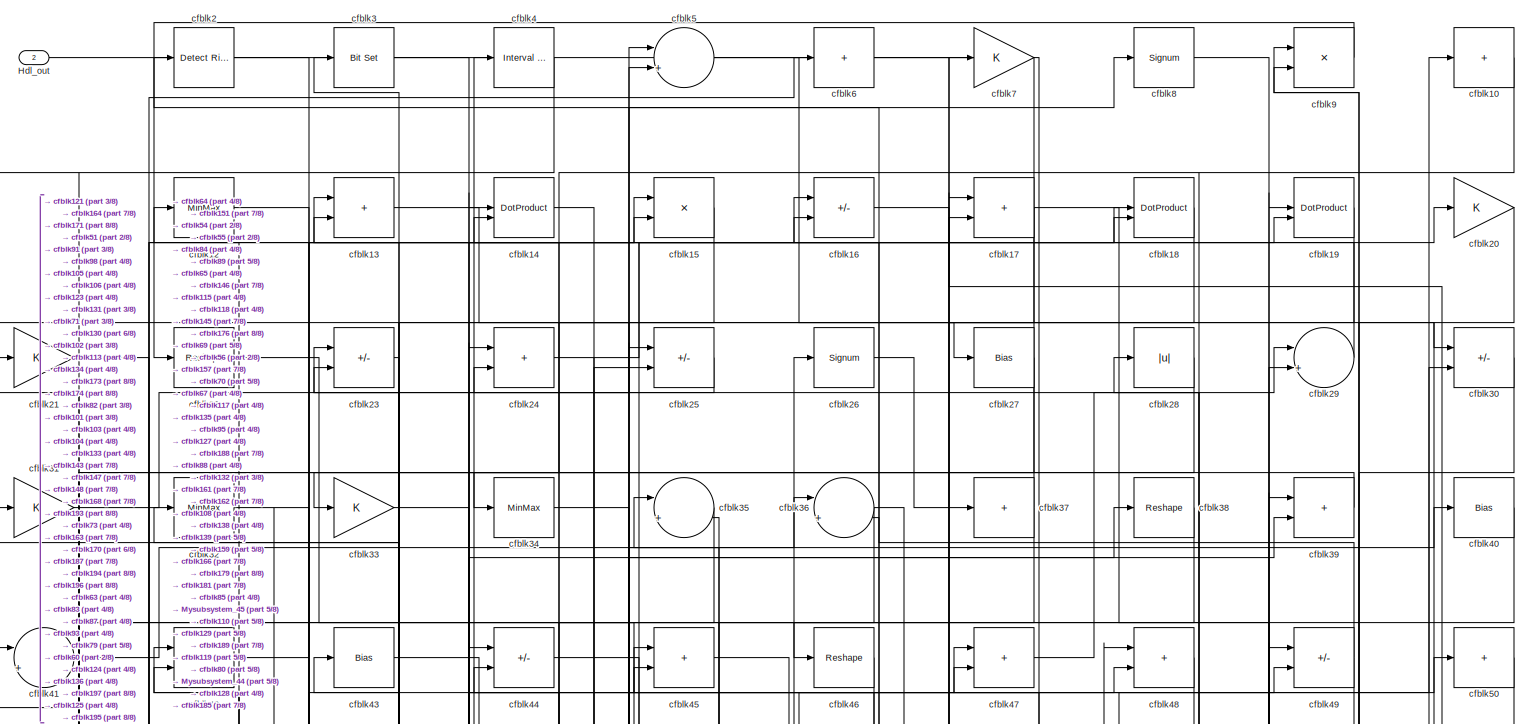
[diagram: root canvas - part 1/8, full width, top band]
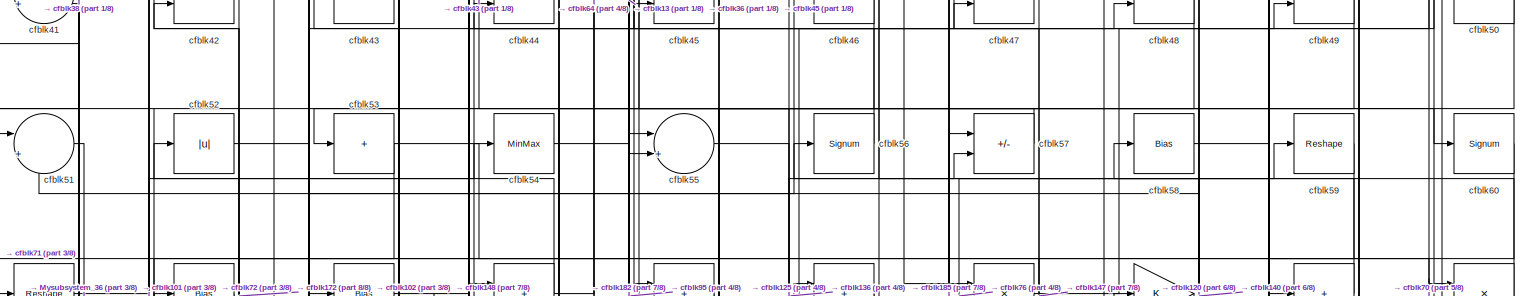
[diagram: root canvas - part 2/8, full width, top band]
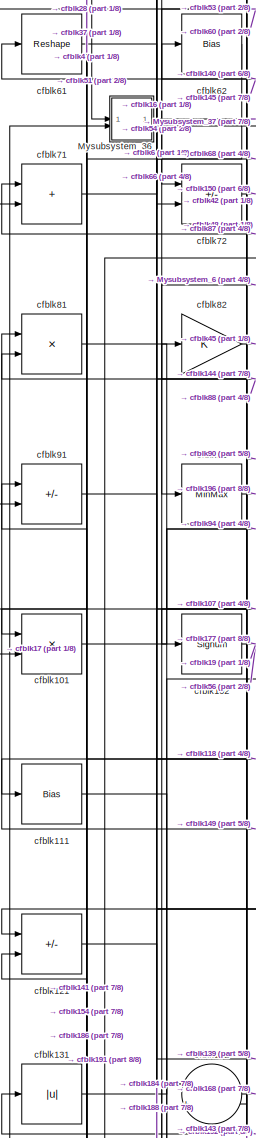
[diagram: root canvas - part 3/8, middle left region]
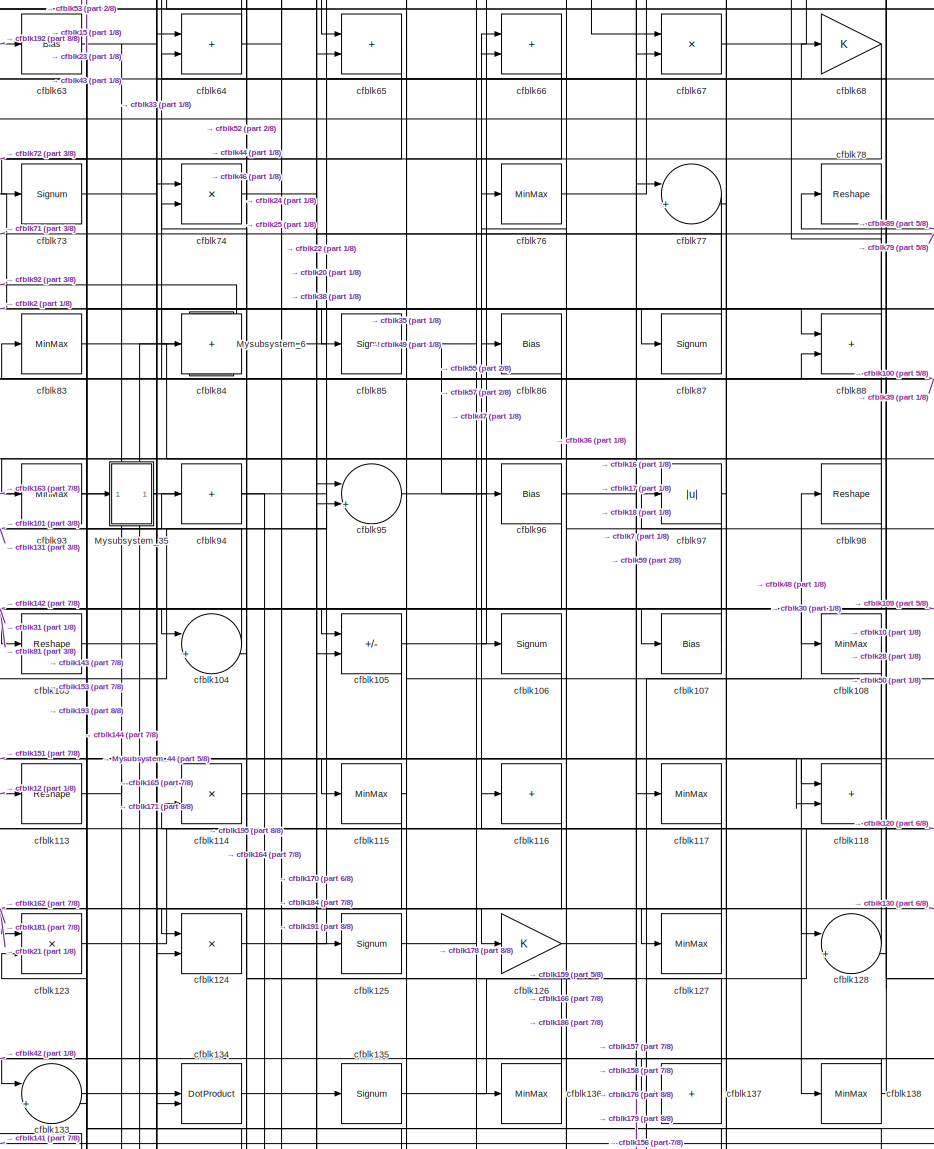
[diagram: root canvas - part 4/8, central region]
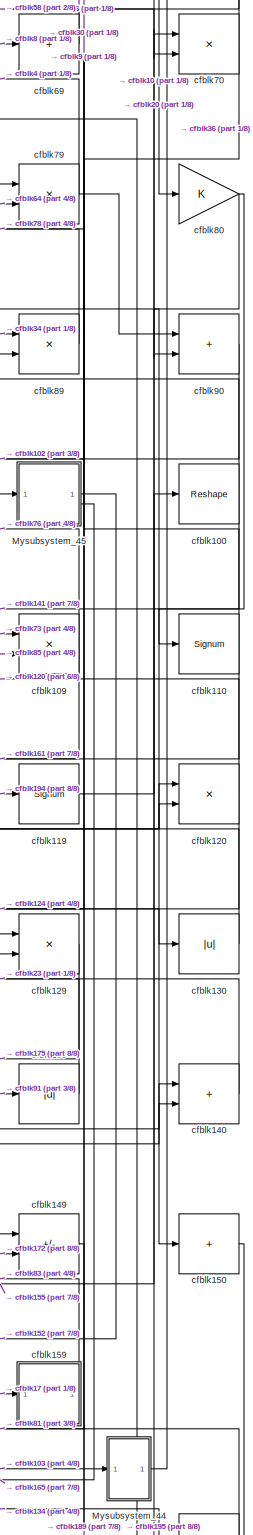
[diagram: root canvas - part 5/8, middle right region]
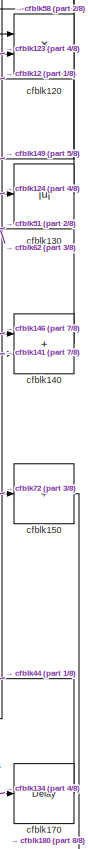
[diagram: root canvas - part 6/8, bottom right region]
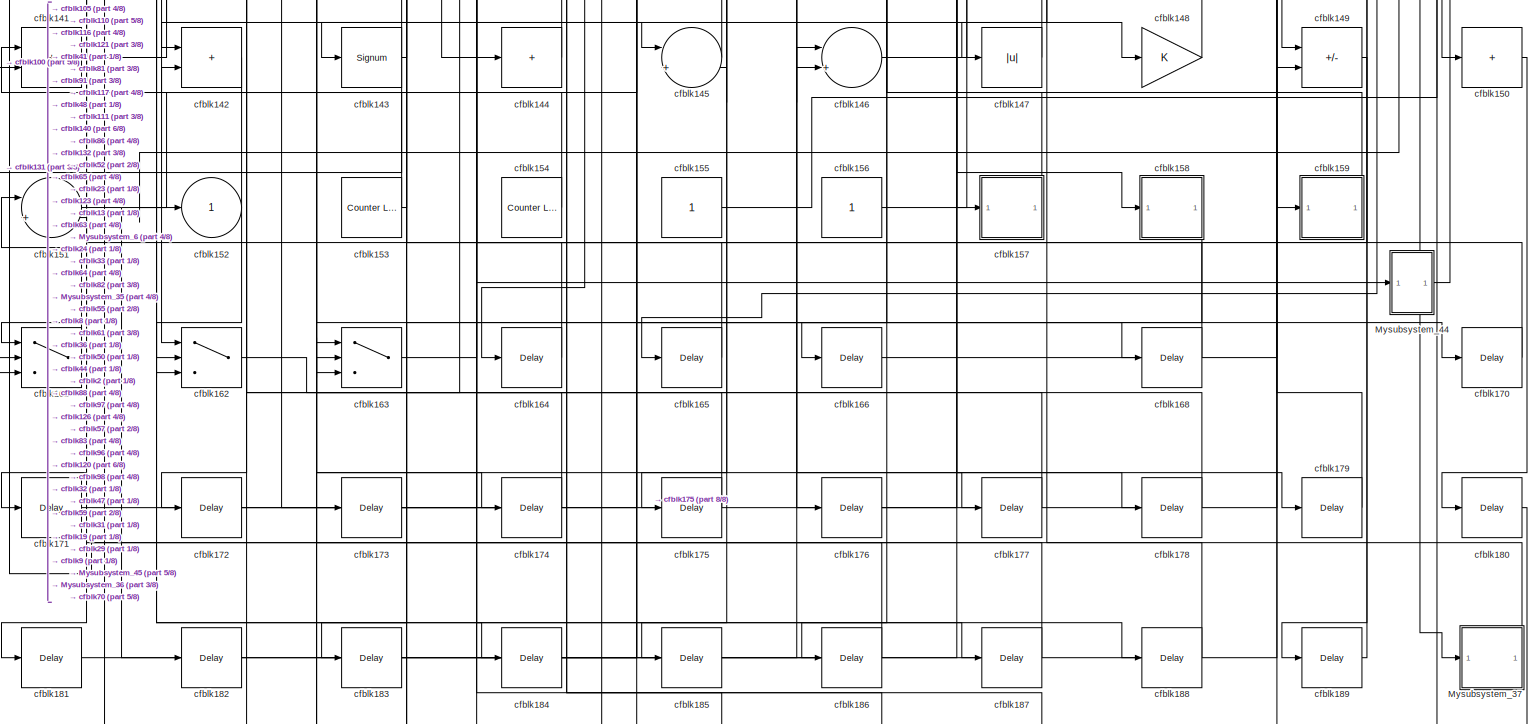
[diagram: root canvas - part 7/8, full width, bottom band]
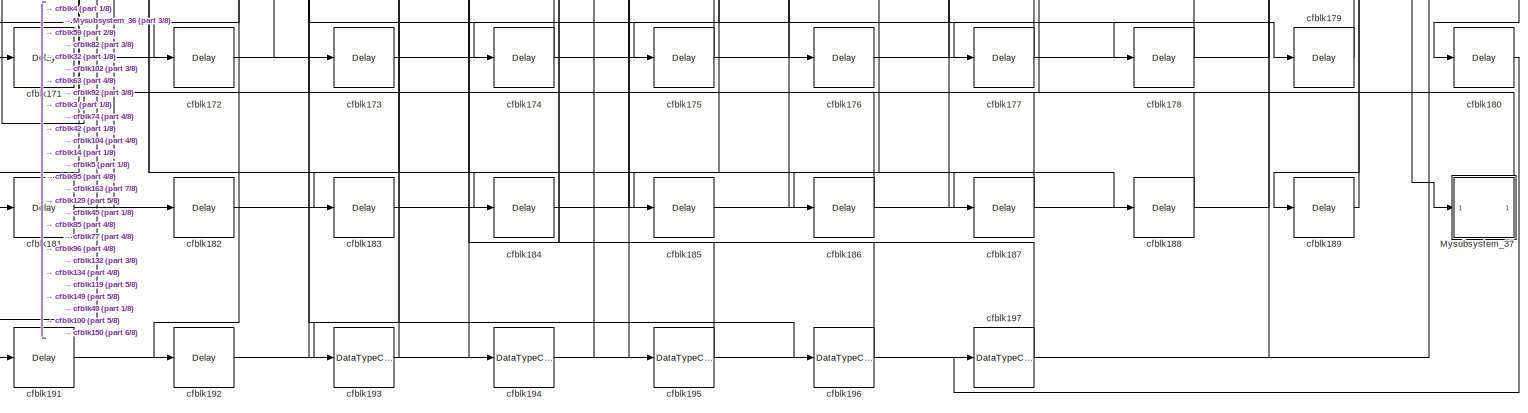
[diagram: root canvas - part 8/8, full width, bottom band]
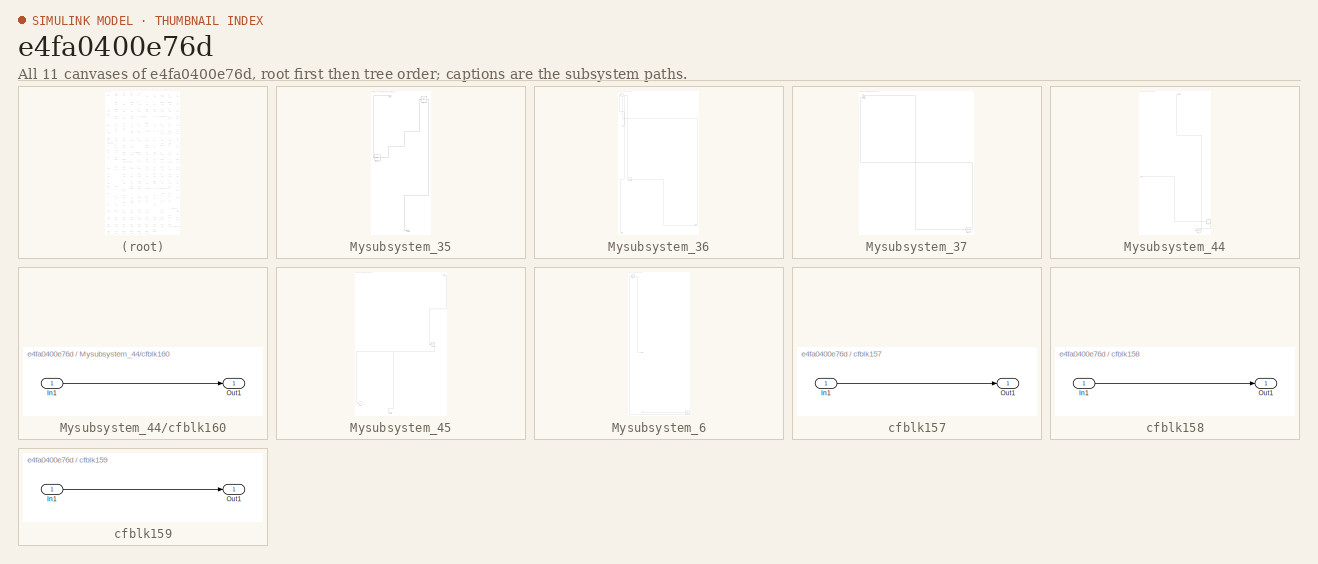
[diagram: thumbnail index - all 11 canvases of the model, root first then tree order]
MODEL slx_e4fa0400e76d
KIND model
CONFIG AbsTol = auto
CONFIG EnableMultiTasking = off
CONFIG FixedStep = auto
CONFIG MaxStep = auto
CONFIG MinStep = auto
CONFIG RelTol = 1e-3
CONFIG SampleTimeConstraint = Unconstrained
CONFIG SolverName = VariableStepAuto
CONFIG StartTime = 0.0
CONFIG StopTime = 10.0
BLOCK [Outport] Hdl_out
  OutDataTypeStr = uint8
  Port = 2
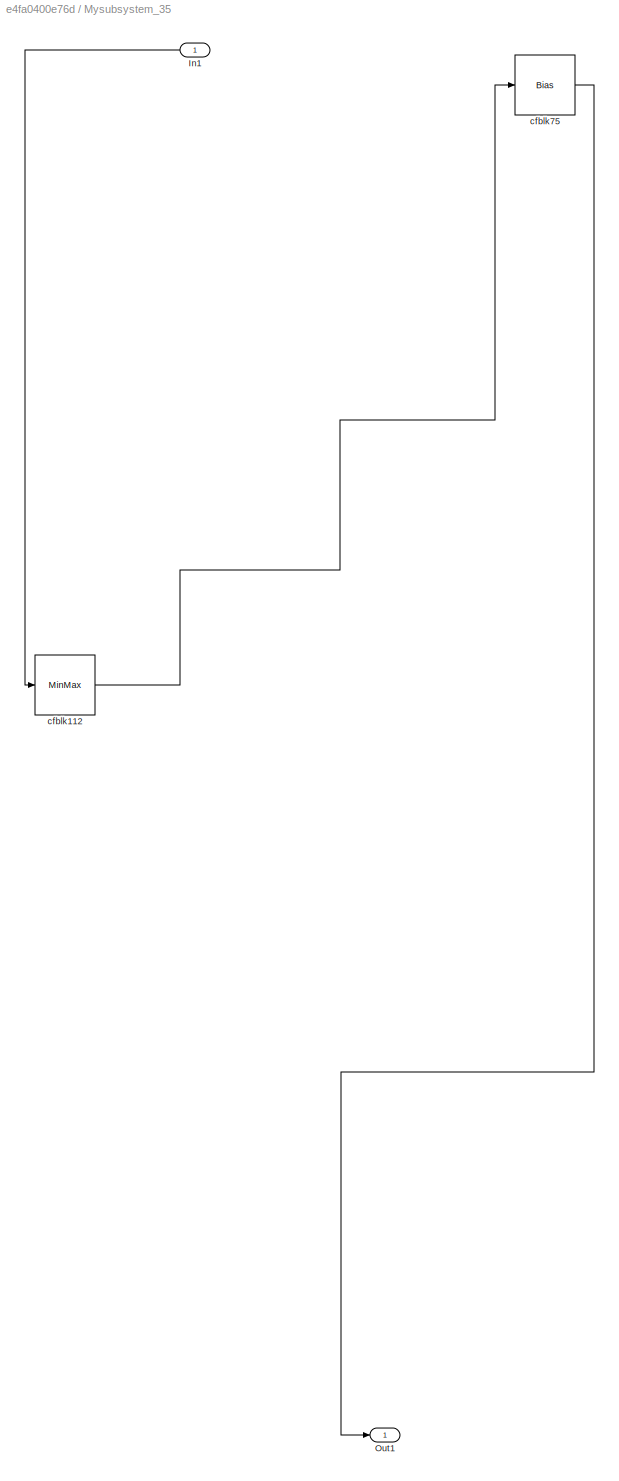
BLOCK [SubSystem] Mysubsystem_35
  RTWFcnName = Mysubsystem_35
  RTWFcnNameOpts = User specified
  RTWFileNameOpts = Use function name
  RTWSystemCode = Reusable function
  TreatAsAtomicUnit = on
BLOCK [Inport] Mysubsystem_35/In1
BLOCK [Outport] Mysubsystem_35/Out1
BLOCK [MinMax] Mysubsystem_35/cfblk112
BLOCK [Bias] Mysubsystem_35/cfblk75
  Bias = 0.0
  SaturateOnIntegerOverflow = off
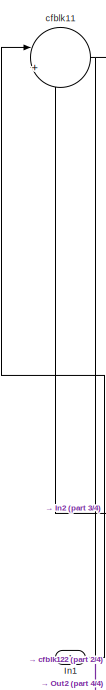
[diagram: Mysubsystem_36 - part 1/4, top left region]
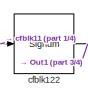
[diagram: Mysubsystem_36 - part 2/4, middle left region]
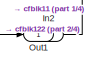
[diagram: Mysubsystem_36 - part 3/4, bottom right region]
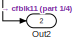
[diagram: Mysubsystem_36 - part 4/4, bottom left region]
BLOCK [SubSystem] Mysubsystem_36
  RTWFcnName = Mysubsystem_36
  RTWFcnNameOpts = User specified
  RTWFileNameOpts = Use function name
  RTWSystemCode = Reusable function
  TreatAsAtomicUnit = on
BLOCK [Inport] Mysubsystem_36/In1
BLOCK [Inport] Mysubsystem_36/In2
  Port = 2
BLOCK [Outport] Mysubsystem_36/Out1
BLOCK [Outport] Mysubsystem_36/Out2
  Port = 2
BLOCK [Sum] Mysubsystem_36/cfblk11
  Inputs = |++
BLOCK [Signum] Mysubsystem_36/cfblk122
BLOCK [SubSystem] Mysubsystem_37
  RTWFcnName = Mysubsystem_37
  RTWFcnNameOpts = User specified
  RTWFileNameOpts = Use function name
  RTWSystemCode = Reusable function
  TreatAsAtomicUnit = on
BLOCK [Inport] Mysubsystem_37/In1
BLOCK [Outport] Mysubsystem_37/Out1
BLOCK [Delay] Mysubsystem_37/cfblk190
  InputPortMap = u0
  SampleTime = 1
BLOCK [SubSystem] Mysubsystem_44
  RTWFcnName = Mysubsystem_44
  RTWFcnNameOpts = User specified
  RTWFileNameOpts = Use function name
  RTWSystemCode = Reusable function
  TreatAsAtomicUnit = on
BLOCK [Inport] Mysubsystem_44/In1
BLOCK [Outport] Mysubsystem_44/Out1
BLOCK [SubSystem] Mysubsystem_44/cfblk160
  LibrarySourceBlock = hdlsllib/Ports &\nSubsystems/Subsystem
BLOCK [Inport] Mysubsystem_44/cfblk160/In1
BLOCK [Outport] Mysubsystem_44/cfblk160/Out1
BLOCK [Delay] Mysubsystem_44/cfblk169
  InputPortMap = u0
  SampleTime = 1
BLOCK [SubSystem] Mysubsystem_45
  RTWFcnName = Mysubsystem_45
  RTWFcnNameOpts = User specified
  RTWFileNameOpts = Use function name
  RTWSystemCode = Reusable function
  TreatAsAtomicUnit = on
BLOCK [Inport] Mysubsystem_45/In1
BLOCK [Outport] Mysubsystem_45/Out2
  Port = 2
BLOCK [Outport] Mysubsystem_45/cfblk152
  VectorParamsAs1DForOutWhenUnconnected = off
BLOCK [Reshape] Mysubsystem_45/cfblk99
BLOCK [SubSystem] Mysubsystem_6
  RTWFcnName = Mysubsystem_6
  RTWFcnNameOpts = User specified
  RTWFileNameOpts = Use function name
  RTWSystemCode = Reusable function
  TreatAsAtomicUnit = on
BLOCK [Inport] Mysubsystem_6/In1
BLOCK [Reference] Mysubsystem_6/cfblk1  REF=hdlsllib/Logic and Bit
Operations/Compare
To Constant
  SourceBlock = hdlsllib/Logic and Bit\nOperations/Compare\nTo Constant
  SourceType = Compare To Constant
BLOCK [Delay] Mysubsystem_6/cfblk167
  InputPortMap = u0
  SampleTime = 1
BLOCK [Outport] Mysubsystem_6/y
BLOCK [Sum] cfblk10
  IconShape = rectangular
  Inputs = +
  OutDataTypeStr = uint8
BLOCK [Reshape] cfblk100
BLOCK [Product] cfblk101
  Inputs = */
  OutDataTypeStr = uint8
  RndMeth = Zero
  SaturateOnIntegerOverflow = on
BLOCK [Signum] cfblk102
BLOCK [Reshape] cfblk103
BLOCK [Sum] cfblk104
  Inputs = |++
  OutDataTypeStr = uint8
BLOCK [Sum] cfblk105
  IconShape = rectangular
  Inputs = +-
  OutDataTypeStr = uint8
BLOCK [Signum] cfblk106
BLOCK [Bias] cfblk107
  Bias = 0.0
  SaturateOnIntegerOverflow = off
BLOCK [MinMax] cfblk108
  OutDataTypeStr = uint8
BLOCK [Product] cfblk109
  Inputs = */
  OutDataTypeStr = uint8
  RndMeth = Zero
  SaturateOnIntegerOverflow = on
BLOCK [Signum] cfblk110
BLOCK [Bias] cfblk111
  Bias = 0.0
  SaturateOnIntegerOverflow = off
BLOCK [Reshape] cfblk113
BLOCK [Product] cfblk114
  Inputs = */
  OutDataTypeStr = uint8
  RndMeth = Zero
  SaturateOnIntegerOverflow = on
BLOCK [MinMax] cfblk115
  OutDataTypeStr = uint8
BLOCK [Sum] cfblk116
  IconShape = rectangular
  Inputs = +
  OutDataTypeStr = uint8
BLOCK [MinMax] cfblk117
  OutDataTypeStr = uint8
BLOCK [Sum] cfblk118
  IconShape = rectangular
  OutDataTypeStr = uint8
BLOCK [Signum] cfblk119
BLOCK [MinMax] cfblk12
  OutDataTypeStr = uint8
BLOCK [Product] cfblk120
  Inputs = */
  OutDataTypeStr = uint8
  RndMeth = Zero
  SaturateOnIntegerOverflow = on
BLOCK [Sum] cfblk121
  IconShape = rectangular
  Inputs = +-
  OutDataTypeStr = uint8
BLOCK [Product] cfblk123
  Inputs = */
  OutDataTypeStr = uint8
  RndMeth = Zero
  SaturateOnIntegerOverflow = on
BLOCK [Product] cfblk124
  Inputs = */
  OutDataTypeStr = uint8
  RndMeth = Zero
  SaturateOnIntegerOverflow = on
BLOCK [Signum] cfblk125
BLOCK [Gain] cfblk126
  OutDataTypeStr = uint8
BLOCK [MinMax] cfblk127
  OutDataTypeStr = uint8
BLOCK [Sum] cfblk128
  Inputs = |++
  OutDataTypeStr = uint8
BLOCK [Product] cfblk129
  Inputs = */
  OutDataTypeStr = uint8
  RndMeth = Zero
  SaturateOnIntegerOverflow = on
BLOCK [Sum] cfblk13
  IconShape = rectangular
  OutDataTypeStr = uint8
BLOCK [Abs] cfblk130
  OutDataTypeStr = uint8
  SaturateOnIntegerOverflow = off
BLOCK [Abs] cfblk131
  OutDataTypeStr = uint8
  SaturateOnIntegerOverflow = off
BLOCK [Sum] cfblk132
  Inputs = |++
  OutDataTypeStr = uint8
BLOCK [Sum] cfblk133
  Inputs = |++
  OutDataTypeStr = uint8
BLOCK [DotProduct] cfblk134
  OutDataTypeStr = uint8
BLOCK [Signum] cfblk135
BLOCK [MinMax] cfblk136
  OutDataTypeStr = uint8
BLOCK [Sum] cfblk137
  IconShape = rectangular
  Inputs = +
  OutDataTypeStr = uint8
BLOCK [MinMax] cfblk138
  OutDataTypeStr = uint8
BLOCK [Abs] cfblk139
  OutDataTypeStr = uint8
  SaturateOnIntegerOverflow = off
BLOCK [DotProduct] cfblk14
  OutDataTypeStr = uint8
BLOCK [Sum] cfblk140
  IconShape = rectangular
  OutDataTypeStr = uint8
BLOCK [Sum] cfblk141
  IconShape = rectangular
  OutDataTypeStr = uint8
BLOCK [Sum] cfblk142
  IconShape = rectangular
  OutDataTypeStr = uint8
BLOCK [Signum] cfblk143
BLOCK [Sum] cfblk144
  IconShape = rectangular
  Inputs = +
  OutDataTypeStr = uint8
BLOCK [Sum] cfblk145
  Inputs = |++
  OutDataTypeStr = uint8
BLOCK [Sum] cfblk146
  Inputs = |++
  OutDataTypeStr = uint8
BLOCK [Abs] cfblk147
  OutDataTypeStr = uint8
  SaturateOnIntegerOverflow = off
BLOCK [Gain] cfblk148
  OutDataTypeStr = uint8
BLOCK [Sum] cfblk149
  IconShape = rectangular
  Inputs = +-
  OutDataTypeStr = uint8
BLOCK [Product] cfblk15
  Inputs = */
  OutDataTypeStr = uint8
  RndMeth = Zero
  SaturateOnIntegerOverflow = on
BLOCK [Sum] cfblk150
  IconShape = rectangular
  Inputs = +
  OutDataTypeStr = uint8
BLOCK [Sum] cfblk151
  Inputs = |++
  OutDataTypeStr = uint8
BLOCK [Outport] cfblk152
  OutDataTypeStr = uint8
  VectorParamsAs1DForOutWhenUnconnected = off
BLOCK [Reference] cfblk153  REF=hdlsllib/Sources/Counter
Limited
  SourceBlock = hdlsllib/Sources/Counter\nLimited
  SourceType = Counter Limited
BLOCK [Reference] cfblk154  REF=hdlsllib/Sources/Counter
Limited
  SourceBlock = hdlsllib/Sources/Counter\nLimited
  SourceType = Counter Limited
BLOCK [Constant] cfblk155
  OutDataTypeStr = uint8
  SampleTime = -1
BLOCK [Constant] cfblk156
  OutDataTypeStr = uint8
  SampleTime = -1
BLOCK [SubSystem] cfblk157
  LibrarySourceBlock = hdlsllib/Ports &\nSubsystems/Subsystem
BLOCK [Inport] cfblk157/In1
BLOCK [Outport] cfblk157/Out1
BLOCK [SubSystem] cfblk158
  LibrarySourceBlock = hdlsllib/Ports &\nSubsystems/Subsystem
BLOCK [Inport] cfblk158/In1
BLOCK [Outport] cfblk158/Out1
BLOCK [SubSystem] cfblk159
  LibrarySourceBlock = hdlsllib/Ports &\nSubsystems/Subsystem
BLOCK [Inport] cfblk159/In1
BLOCK [Outport] cfblk159/Out1
BLOCK [Sum] cfblk16
  IconShape = rectangular
  Inputs = +-
  OutDataTypeStr = uint8
BLOCK [Switch] cfblk161
  InputSameDT = off
  OutDataTypeStr = uint8
  SaturateOnIntegerOverflow = off
BLOCK [Switch] cfblk162
  InputSameDT = off
  OutDataTypeStr = uint8
  SaturateOnIntegerOverflow = off
BLOCK [Switch] cfblk163
  InputSameDT = off
  OutDataTypeStr = uint8
  SaturateOnIntegerOverflow = off
BLOCK [Delay] cfblk164
  InputPortMap = u0
  SampleTime = 1
BLOCK [Delay] cfblk165
  InputPortMap = u0
  SampleTime = 1
BLOCK [Delay] cfblk166
  InputPortMap = u0
  SampleTime = 1
BLOCK [Delay] cfblk168
  InputPortMap = u0
  SampleTime = 1
BLOCK [Sum] cfblk17
  IconShape = rectangular
  OutDataTypeStr = uint8
BLOCK [Delay] cfblk170
  InputPortMap = u0
  SampleTime = 1
BLOCK [Delay] cfblk171
  InputPortMap = u0
  SampleTime = 1
BLOCK [Delay] cfblk172
  InputPortMap = u0
  SampleTime = 1
BLOCK [Delay] cfblk173
  InputPortMap = u0
  SampleTime = 1
BLOCK [Delay] cfblk174
  InputPortMap = u0
  SampleTime = 1
BLOCK [Delay] cfblk175
  InputPortMap = u0
  SampleTime = 1
BLOCK [Delay] cfblk176
  InputPortMap = u0
  SampleTime = 1
BLOCK [Delay] cfblk177
  InputPortMap = u0
  SampleTime = 1
BLOCK [Delay] cfblk178
  InputPortMap = u0
  SampleTime = 1
BLOCK [Delay] cfblk179
  InputPortMap = u0
  SampleTime = 1
BLOCK [DotProduct] cfblk18
  OutDataTypeStr = uint8
BLOCK [Delay] cfblk180
  InputPortMap = u0
  SampleTime = 1
BLOCK [Delay] cfblk181
  InputPortMap = u0
  SampleTime = 1
BLOCK [Delay] cfblk182
  InputPortMap = u0
  SampleTime = 1
BLOCK [Delay] cfblk183
  InputPortMap = u0
  SampleTime = 1
BLOCK [Delay] cfblk184
  InputPortMap = u0
  SampleTime = 1
BLOCK [Delay] cfblk185
  InputPortMap = u0
  SampleTime = 1
BLOCK [Delay] cfblk186
  InputPortMap = u0
  SampleTime = 1
BLOCK [Delay] cfblk187
  InputPortMap = u0
  SampleTime = 1
BLOCK [Delay] cfblk188
  InputPortMap = u0
  SampleTime = 1
BLOCK [Delay] cfblk189
  InputPortMap = u0
  SampleTime = 1
BLOCK [DotProduct] cfblk19
  OutDataTypeStr = uint8
BLOCK [Delay] cfblk191
  InputPortMap = u0
  SampleTime = 1
BLOCK [Delay] cfblk192
  InputPortMap = u0
  SampleTime = 1
BLOCK [DataTypeConversion] cfblk193
  OutDataTypeStr = uint8
  RndMeth = Floor
  SaturateOnIntegerOverflow = off
BLOCK [DataTypeConversion] cfblk194
  OutDataTypeStr = uint8
  RndMeth = Floor
  SaturateOnIntegerOverflow = off
BLOCK [DataTypeConversion] cfblk195
  OutDataTypeStr = uint8
  RndMeth = Floor
  SaturateOnIntegerOverflow = off
BLOCK [DataTypeConversion] cfblk196
  OutDataTypeStr = uint8
  RndMeth = Floor
  SaturateOnIntegerOverflow = off
BLOCK [DataTypeConversion] cfblk197
  OutDataTypeStr = uint8
  RndMeth = Floor
  SaturateOnIntegerOverflow = off
BLOCK [Reference] cfblk2  REF=hdlsllib/Logic and Bit
Operations/Detect Rise
Nonnegative
  SourceBlock = hdlsllib/Logic and Bit\nOperations/Detect Rise\nNonnegative
  SourceType = Detect Rise Nonnegative
BLOCK [Gain] cfblk20
  OutDataTypeStr = uint8
BLOCK [Gain] cfblk21
  OutDataTypeStr = uint8
BLOCK [Reshape] cfblk22
BLOCK [Sum] cfblk23
  IconShape = rectangular
  Inputs = +-
  OutDataTypeStr = uint8
BLOCK [Sum] cfblk24
  IconShape = rectangular
  OutDataTypeStr = uint8
BLOCK [Sum] cfblk25
  IconShape = rectangular
  Inputs = +-
  OutDataTypeStr = uint8
BLOCK [Signum] cfblk26
BLOCK [Bias] cfblk27
  Bias = 0.0
  SaturateOnIntegerOverflow = off
BLOCK [Abs] cfblk28
  OutDataTypeStr = uint8
  SaturateOnIntegerOverflow = off
BLOCK [Sum] cfblk29
  Inputs = |++
  OutDataTypeStr = uint8
BLOCK [Reference] cfblk3  REF=simulink/Logic and Bit
Operations/Bit Set
  LibrarySourceBlock = hdlsllib/Logic and Bit\nOperations/Bit Set
  SourceBlock = simulink/Logic and Bit\nOperations/Bit Set
  SourceType = Bit Set
BLOCK [Sum] cfblk30
  IconShape = rectangular
  Inputs = +-
  OutDataTypeStr = uint8
BLOCK [Gain] cfblk31
  OutDataTypeStr = uint8
BLOCK [MinMax] cfblk32
  OutDataTypeStr = uint8
BLOCK [Gain] cfblk33
  OutDataTypeStr = uint8
BLOCK [MinMax] cfblk34
  OutDataTypeStr = uint8
BLOCK [Sum] cfblk35
  Inputs = |++
  OutDataTypeStr = uint8
BLOCK [Sum] cfblk36
  Inputs = |++
  OutDataTypeStr = uint8
BLOCK [Sum] cfblk37
  IconShape = rectangular
  Inputs = +
  OutDataTypeStr = uint8
BLOCK [Reshape] cfblk38
BLOCK [Sum] cfblk39
  IconShape = rectangular
  OutDataTypeStr = uint8
BLOCK [Reference] cfblk4  REF=hdlsllib/Logic and Bit
Operations/Interval Test
  SourceBlock = hdlsllib/Logic and Bit\nOperations/Interval Test
  SourceType = Interval Test
BLOCK [Bias] cfblk40
  Bias = 0.0
  SaturateOnIntegerOverflow = off
BLOCK [Sum] cfblk41
  Inputs = |++
  OutDataTypeStr = uint8
BLOCK [Product] cfblk42
  Inputs = */
  OutDataTypeStr = uint8
  RndMeth = Zero
  SaturateOnIntegerOverflow = on
BLOCK [Bias] cfblk43
  Bias = 0.0
  SaturateOnIntegerOverflow = off
BLOCK [Sum] cfblk44
  IconShape = rectangular
  Inputs = +-
  OutDataTypeStr = uint8
BLOCK [Sum] cfblk45
  IconShape = rectangular
  OutDataTypeStr = uint8
BLOCK [Reshape] cfblk46
BLOCK [Sum] cfblk47
  IconShape = rectangular
  OutDataTypeStr = uint8
BLOCK [Sum] cfblk48
  IconShape = rectangular
  OutDataTypeStr = uint8
BLOCK [Sum] cfblk49
  IconShape = rectangular
  Inputs = +-
  OutDataTypeStr = uint8
BLOCK [Sum] cfblk5
  Inputs = |++
  OutDataTypeStr = uint8
BLOCK [Sum] cfblk50
  IconShape = rectangular
  Inputs = +
  OutDataTypeStr = uint8
BLOCK [Sum] cfblk51
  Inputs = |++
  OutDataTypeStr = uint8
BLOCK [Abs] cfblk52
  OutDataTypeStr = uint8
  SaturateOnIntegerOverflow = off
BLOCK [Sum] cfblk53
  IconShape = rectangular
  Inputs = +
  OutDataTypeStr = uint8
BLOCK [MinMax] cfblk54
  OutDataTypeStr = uint8
BLOCK [Sum] cfblk55
  Inputs = |++
  OutDataTypeStr = uint8
BLOCK [Signum] cfblk56
BLOCK [Sum] cfblk57
  IconShape = rectangular
  Inputs = +-
  OutDataTypeStr = uint8
BLOCK [Bias] cfblk58
  Bias = 0.0
  SaturateOnIntegerOverflow = off
BLOCK [Reshape] cfblk59
BLOCK [Sum] cfblk6
  IconShape = rectangular
  Inputs = +
  OutDataTypeStr = uint8
BLOCK [Signum] cfblk60
BLOCK [Reshape] cfblk61
BLOCK [Bias] cfblk62
  Bias = 0.0
  SaturateOnIntegerOverflow = off
BLOCK [Bias] cfblk63
  Bias = 0.0
  SaturateOnIntegerOverflow = off
BLOCK [Sum] cfblk64
  IconShape = rectangular
  OutDataTypeStr = uint8
BLOCK [Sum] cfblk65
  IconShape = rectangular
  OutDataTypeStr = uint8
BLOCK [Sum] cfblk66
  IconShape = rectangular
  OutDataTypeStr = uint8
BLOCK [Product] cfblk67
  Inputs = */
  OutDataTypeStr = uint8
  RndMeth = Zero
  SaturateOnIntegerOverflow = on
BLOCK [Gain] cfblk68
  OutDataTypeStr = uint8
BLOCK [Sum] cfblk69
  IconShape = rectangular
  Inputs = +
  OutDataTypeStr = uint8
BLOCK [Gain] cfblk7
  OutDataTypeStr = uint8
BLOCK [Product] cfblk70
  Inputs = */
  OutDataTypeStr = uint8
  RndMeth = Zero
  SaturateOnIntegerOverflow = on
BLOCK [Sum] cfblk71
  IconShape = rectangular
  OutDataTypeStr = uint8
BLOCK [Sum] cfblk72
  IconShape = rectangular
  Inputs = +-
  OutDataTypeStr = uint8
BLOCK [Signum] cfblk73
BLOCK [Product] cfblk74
  Inputs = */
  OutDataTypeStr = uint8
  RndMeth = Zero
  SaturateOnIntegerOverflow = on
BLOCK [MinMax] cfblk76
  OutDataTypeStr = uint8
BLOCK [Sum] cfblk77
  Inputs = |++
  OutDataTypeStr = uint8
BLOCK [Reshape] cfblk78
BLOCK [Product] cfblk79
  Inputs = */
  OutDataTypeStr = uint8
  RndMeth = Zero
  SaturateOnIntegerOverflow = on
BLOCK [Signum] cfblk8
BLOCK [Gain] cfblk80
  OutDataTypeStr = uint8
BLOCK [Product] cfblk81
  Inputs = */
  OutDataTypeStr = uint8
  RndMeth = Zero
  SaturateOnIntegerOverflow = on
BLOCK [Gain] cfblk82
  OutDataTypeStr = uint8
BLOCK [MinMax] cfblk83
  OutDataTypeStr = uint8
BLOCK [Sum] cfblk84
  IconShape = rectangular
  Inputs = +
  OutDataTypeStr = uint8
BLOCK [Signum] cfblk85
BLOCK [Bias] cfblk86
  Bias = 0.0
  SaturateOnIntegerOverflow = off
BLOCK [Signum] cfblk87
BLOCK [Sum] cfblk88
  IconShape = rectangular
  OutDataTypeStr = uint8
BLOCK [Product] cfblk89
  Inputs = */
  OutDataTypeStr = uint8
  RndMeth = Zero
  SaturateOnIntegerOverflow = on
BLOCK [Product] cfblk9
  Inputs = */
  OutDataTypeStr = uint8
  RndMeth = Zero
  SaturateOnIntegerOverflow = on
BLOCK [Sum] cfblk90
  IconShape = rectangular
  OutDataTypeStr = uint8
BLOCK [Sum] cfblk91
  IconShape = rectangular
  Inputs = +-
  OutDataTypeStr = uint8
BLOCK [MinMax] cfblk92
  OutDataTypeStr = uint8
BLOCK [MinMax] cfblk93
  OutDataTypeStr = uint8
BLOCK [Sum] cfblk94
  IconShape = rectangular
  Inputs = +
  OutDataTypeStr = uint8
BLOCK [Sum] cfblk95
  Inputs = |++
  OutDataTypeStr = uint8
BLOCK [Bias] cfblk96
  Bias = 0.0
  SaturateOnIntegerOverflow = off
BLOCK [Abs] cfblk97
  OutDataTypeStr = uint8
  SaturateOnIntegerOverflow = off
BLOCK [Reshape] cfblk98
LINE Mysubsystem_35/In1:1 -> Mysubsystem_35/cfblk112:1
LINE Mysubsystem_35/cfblk112:1 -> Mysubsystem_35/cfblk75:1
LINE Mysubsystem_35/cfblk75:1 -> Mysubsystem_35/Out1:1
LINE Mysubsystem_35:1 -> cfblk164:1
LINE Mysubsystem_36/In1:1 -> Mysubsystem_36/cfblk11:1
LINE Mysubsystem_36/In2:1 -> Mysubsystem_36/cfblk11:2
NET Mysubsystem_36/cfblk11:1 -> Mysubsystem_36/Out2:1, Mysubsystem_36/cfblk122:1
LINE Mysubsystem_36/cfblk122:1 -> Mysubsystem_36/Out1:1
LINE Mysubsystem_36:1 -> Mysubsystem_37:1
LINE Mysubsystem_36:2 -> cfblk191:1
LINE Mysubsystem_37/In1:1 -> Mysubsystem_37/cfblk190:1
LINE Mysubsystem_37/cfblk190:1 -> Mysubsystem_37/Out1:1
LINE Mysubsystem_37:1 -> Mysubsystem_36:2
LINE Mysubsystem_44/In1:1 -> Mysubsystem_44/cfblk160:1
LINE Mysubsystem_44/cfblk160/In1:1 -> Mysubsystem_44/cfblk160/Out1:1
LINE Mysubsystem_44/cfblk160:1 -> Mysubsystem_44/cfblk169:1
LINE Mysubsystem_44/cfblk169:1 -> Mysubsystem_44/Out1:1
LINE Mysubsystem_44:1 -> cfblk17:1
LINE Mysubsystem_45/In1:1 -> Mysubsystem_45/cfblk99:1
NET Mysubsystem_45/cfblk99:1 -> Mysubsystem_45/Out2:1, Mysubsystem_45/cfblk152:1
LINE Mysubsystem_45:1 -> cfblk152:1
LINE Mysubsystem_45:2 -> cfblk165:1
LINE Mysubsystem_6/In1:1 -> Mysubsystem_6/cfblk167:1
LINE Mysubsystem_6/cfblk167:1 -> Mysubsystem_6/cfblk1:1
LINE Mysubsystem_6/cfblk1:1 -> Mysubsystem_6/y:1
LINE Mysubsystem_6:1 -> cfblk92:1
NET cfblk100:1 -> cfblk141:2, cfblk64:2, cfblk79:2
NET cfblk101:1 -> cfblk118:2, cfblk54:1, cfblk94:1
NET cfblk102:1 -> cfblk177:1, cfblk19:2, cfblk56:1
LINE cfblk103:1 -> Mysubsystem_44:1
LINE cfblk104:1 -> cfblk43:1
NET cfblk105:1 -> cfblk151:2, cfblk39:1, cfblk47:1
LINE cfblk106:1 -> cfblk115:1
LINE cfblk107:1 -> cfblk97:1
LINE cfblk108:1 -> cfblk138:1
NET cfblk109:1 -> cfblk129:2, cfblk76:1
NET cfblk10:1 -> cfblk108:1, cfblk124:1
NET cfblk110:1 -> cfblk161:1, cfblk9:1
LINE cfblk111:1 -> cfblk145:1
LINE cfblk113:1 -> cfblk114:1
LINE cfblk114:1 -> cfblk118:1
NET cfblk115:1 -> cfblk124:2, cfblk35:2
LINE cfblk116:1 -> cfblk181:1
LINE cfblk117:1 -> cfblk162:2
LINE cfblk118:1 -> cfblk35:1
LINE cfblk119:1 -> cfblk10:1
NET cfblk120:1 -> cfblk149:1, cfblk58:1
LINE cfblk121:1 -> cfblk188:1
NET cfblk123:1 -> cfblk120:2, cfblk25:1
NET cfblk124:1 -> cfblk130:1, cfblk89:2
LINE cfblk125:1 -> cfblk57:2
LINE cfblk126:1 -> cfblk158:1
LINE cfblk127:1 -> cfblk66:2
NET cfblk128:1 -> cfblk114:2, cfblk116:1
LINE cfblk129:1 -> cfblk175:1
LINE cfblk12:1 -> cfblk113:1
LINE cfblk130:1 -> cfblk12:1
NET cfblk131:1 -> cfblk16:1, cfblk66:1, cfblk88:2
NET cfblk132:1 -> cfblk168:1, cfblk42:1
NET cfblk133:1 -> cfblk49:2, cfblk68:1
NET cfblk134:1 -> cfblk170:1, cfblk79:1
LINE cfblk135:1 -> cfblk17:2
LINE cfblk136:1 -> cfblk44:2
LINE cfblk137:1 -> cfblk74:2
NET cfblk138:1 -> cfblk137:1, cfblk28:1
LINE cfblk139:1 -> cfblk23:1
LINE cfblk13:1 -> cfblk55:2
NET cfblk140:1 -> cfblk51:2, cfblk62:1
NET cfblk141:1 -> cfblk140:2, cfblk86:1, cfblk91:1
LINE cfblk142:1 -> cfblk162:3
NET cfblk143:1 -> cfblk131:1, cfblk161:2, cfblk23:2
LINE cfblk144:1 -> cfblk82:1
LINE cfblk145:1 -> cfblk61:1
NET cfblk146:1 -> cfblk120:1, cfblk140:1
LINE cfblk147:1 -> cfblk32:1
LINE cfblk148:1 -> cfblk31:1
LINE cfblk149:1 -> cfblk81:1
LINE cfblk14:1 -> cfblk195:1
LINE cfblk150:1 -> cfblk180:1
NET cfblk151:1 -> cfblk182:1, cfblk50:1, cfblk8:1
NET cfblk153:1 -> cfblk123:2, cfblk141:1, cfblk142:2
LINE cfblk154:1 -> cfblk121:2
LINE cfblk155:1 -> cfblk70:1
LINE cfblk156:1 -> cfblk98:1
LINE cfblk157/In1:1 -> cfblk157/Out1:1
LINE cfblk157:1 -> cfblk2:1
LINE cfblk158/In1:1 -> cfblk158/Out1:1
LINE cfblk158:1 -> cfblk183:1
LINE cfblk159/In1:1 -> cfblk159/Out1:1
LINE cfblk159:1 -> cfblk83:1
LINE cfblk15:1 -> cfblk103:1
LINE cfblk161:1 -> cfblk151:1
LINE cfblk162:1 -> Mysubsystem_6:1
LINE cfblk163:1 -> cfblk24:1
LINE cfblk164:1 -> cfblk41:1
LINE cfblk165:1 -> cfblk64:1
LINE cfblk166:1 -> cfblk29:2
LINE cfblk168:1 -> cfblk13:2
LINE cfblk16:1 -> cfblk117:1
LINE cfblk170:1 -> cfblk44:1
LINE cfblk171:1 -> cfblk74:1
LINE cfblk172:1 -> cfblk149:2
LINE cfblk173:1 -> cfblk5:2
LINE cfblk174:1 -> cfblk42:2
LINE cfblk175:1 -> cfblk163:2
LINE cfblk176:1 -> cfblk77:1
LINE cfblk177:1 -> cfblk132:1
LINE cfblk178:1 -> cfblk134:1
LINE cfblk179:1 -> cfblk49:1
NET cfblk17:1 -> cfblk101:2, cfblk133:2, cfblk159:1
LINE cfblk180:1 -> cfblk197:1
LINE cfblk181:1 -> cfblk19:1
LINE cfblk182:1 -> cfblk55:1
LINE cfblk183:1 -> cfblk146:1
LINE cfblk184:1 -> cfblk65:2
LINE cfblk185:1 -> cfblk57:1
LINE cfblk186:1 -> cfblk81:2
LINE cfblk187:1 -> cfblk163:1
LINE cfblk188:1 -> cfblk47:2
LINE cfblk189:1 -> cfblk9:2
LINE cfblk18:1 -> cfblk67:2
LINE cfblk191:1 -> cfblk95:2
LINE cfblk192:1 -> cfblk63:1
LINE cfblk193:1 -> cfblk3:1
LINE cfblk194:1 -> cfblk119:1
NET cfblk195:1 -> cfblk100:1, cfblk104:2
LINE cfblk196:1 -> cfblk14:1
LINE cfblk197:1 -> cfblk14:2
LINE cfblk19:1 -> cfblk34:1
NET cfblk20:1 -> cfblk129:1, cfblk80:1
LINE cfblk21:1 -> cfblk123:1
LINE cfblk22:1 -> cfblk65:1
LINE cfblk23:1 -> cfblk73:1
NET cfblk24:1 -> cfblk125:1, cfblk18:1
LINE cfblk25:1 -> cfblk24:2
LINE cfblk26:1 -> cfblk37:1
LINE cfblk27:1 -> cfblk41:2
LINE cfblk28:1 -> cfblk121:1
LINE cfblk29:1 -> cfblk13:1
LINE cfblk2:1 -> cfblk88:1
LINE cfblk30:1 -> Mysubsystem_45:1
NET cfblk31:1 -> cfblk105:2, cfblk106:1, cfblk18:2, cfblk5:1
NET cfblk32:1 -> cfblk173:1, cfblk174:1
NET cfblk33:1 -> cfblk187:1, cfblk87:1
LINE cfblk34:1 -> cfblk89:1
LINE cfblk35:1 -> cfblk104:1
NET cfblk36:1 -> cfblk145:2, cfblk67:1
NET cfblk37:1 -> Hdl_out:1, cfblk101:1
LINE cfblk38:1 -> cfblk51:1
LINE cfblk39:1 -> cfblk33:1
LINE cfblk3:1 -> cfblk194:1
LINE cfblk40:1 -> cfblk46:1
LINE cfblk41:1 -> cfblk40:1
NET cfblk42:1 -> cfblk134:2, cfblk15:1
LINE cfblk43:1 -> cfblk60:1
LINE cfblk44:1 -> cfblk146:2
LINE cfblk45:1 -> cfblk176:1
LINE cfblk46:1 -> cfblk84:1
LINE cfblk47:1 -> cfblk29:1
NET cfblk48:1 -> cfblk132:2, cfblk161:3, cfblk162:1
NET cfblk49:1 -> cfblk16:2, cfblk85:1
NET cfblk4:1 -> cfblk171:1, cfblk91:2
NET cfblk50:1 -> cfblk128:2, cfblk185:1
LINE cfblk51:1 -> Mysubsystem_36:1
LINE cfblk52:1 -> cfblk148:1
NET cfblk53:1 -> cfblk71:2, cfblk95:1
LINE cfblk54:1 -> cfblk36:1
LINE cfblk55:1 -> cfblk136:1
LINE cfblk56:1 -> cfblk45:1
LINE cfblk57:1 -> cfblk53:1
LINE cfblk58:1 -> cfblk70:2
NET cfblk59:1 -> cfblk147:1, cfblk172:1
LINE cfblk5:1 -> cfblk27:1
LINE cfblk60:1 -> cfblk72:1
LINE cfblk61:1 -> cfblk184:1
LINE cfblk62:1 -> cfblk111:1
NET cfblk63:1 -> cfblk144:1, cfblk15:2
NET cfblk64:1 -> cfblk25:2, cfblk52:1
NET cfblk65:1 -> Mysubsystem_35:1, cfblk163:3
LINE cfblk66:1 -> cfblk105:1
LINE cfblk67:1 -> cfblk30:2
LINE cfblk68:1 -> cfblk72:2
LINE cfblk69:1 -> cfblk26:1
LINE cfblk6:1 -> cfblk30:1
NET cfblk70:1 -> cfblk189:1, cfblk36:2
LINE cfblk71:1 -> cfblk6:1
LINE cfblk72:1 -> cfblk150:1
LINE cfblk73:1 -> cfblk109:1
LINE cfblk74:1 -> cfblk135:1
LINE cfblk76:1 -> cfblk59:1
LINE cfblk77:1 -> cfblk193:1
LINE cfblk78:1 -> cfblk133:1
NET cfblk79:1 -> cfblk4:1, cfblk90:1
LINE cfblk7:1 -> cfblk127:1
NET cfblk80:1 -> cfblk110:1, cfblk90:2
LINE cfblk81:1 -> cfblk107:1
NET cfblk82:1 -> cfblk192:1, cfblk45:2
NET cfblk83:1 -> cfblk157:1, cfblk39:2
NET cfblk84:1 -> cfblk20:1, cfblk38:1
NET cfblk85:1 -> cfblk109:2, cfblk178:1, cfblk96:1
LINE cfblk86:1 -> cfblk93:1
LINE cfblk87:1 -> cfblk71:1
NET cfblk88:1 -> cfblk186:1, cfblk48:1
LINE cfblk89:1 -> cfblk78:1
LINE cfblk8:1 -> cfblk69:1
LINE cfblk90:1 -> cfblk102:1
LINE cfblk91:1 -> cfblk139:1
LINE cfblk92:1 -> cfblk196:1
LINE cfblk93:1 -> cfblk48:2
LINE cfblk94:1 -> cfblk126:1
LINE cfblk95:1 -> cfblk7:1
NET cfblk96:1 -> cfblk128:1, cfblk142:1, cfblk179:1
NET cfblk97:1 -> cfblk166:1, cfblk77:2
NET cfblk98:1 -> cfblk143:1, cfblk21:1
LINE cfblk9:1 -> cfblk22:1
note: NET lines group one-source signal fan-out (src -> all destinations, sorted); 1:1 wires keep LINE
